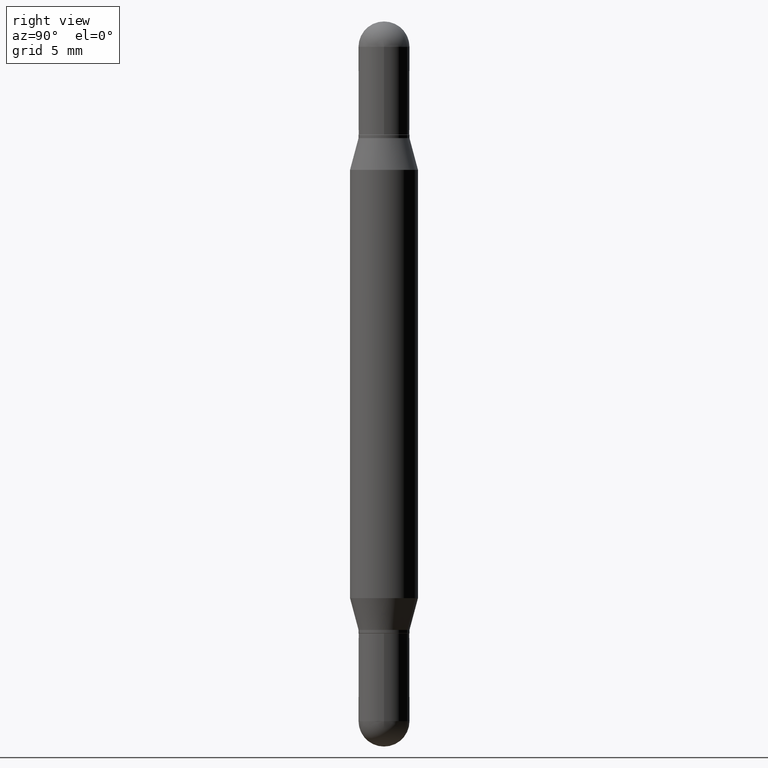
[diagram: clean part render]
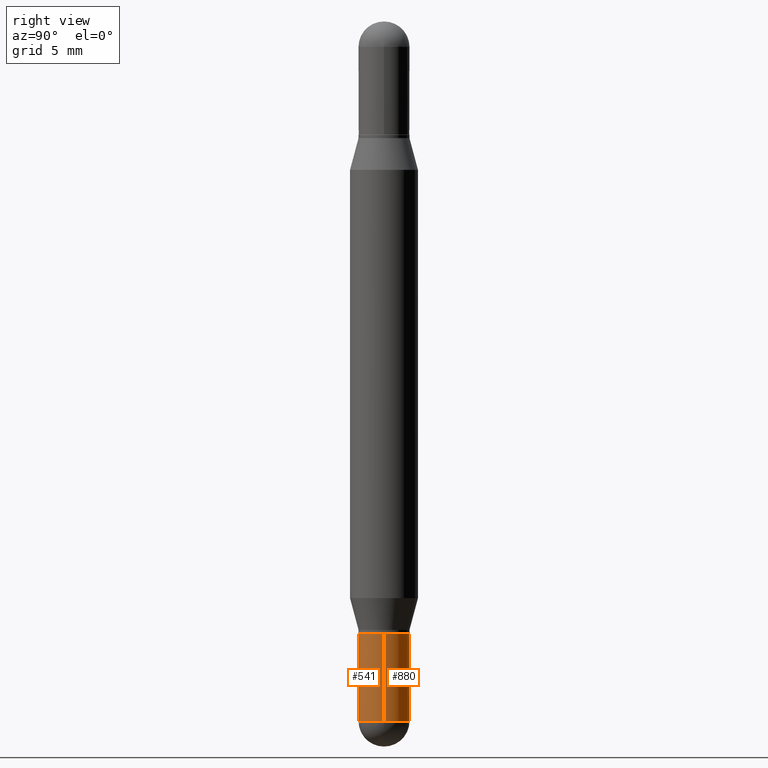
[diagram: same view with one multi-face feature highlighted, each face labeled with its STEP entity id]
A machine part, right view. The highlighted faces form ONE feature: a constant-radius fillet chain: 2 tangent blend faces with common blend radius 1.7856 mm. The faces share edges in the B-rep.
Their STEP definitions:
[1] entity #880 (Cylinder):
#5 = EDGE_CURVE ( 'NONE', #851, #649, #34, .T. ) ;
#18 = CARTESIAN_POINT ( 'NONE',  ( 0.07030000000000004301, -4.909022762413449473E-16, 3.427952273384545239E-30 ) ) ;
#20 = DIRECTION ( 'NONE',  ( 1.000000000000000000, -6.982962677686261189E-15, 0.000000000000000000 ) ) ;
#34 = CIRCLE ( 'NONE', #729, 0.07030000000000004301 ) ;
#44 = DIRECTION ( 'NONE',  ( 1.000000000000000000, -6.982962677686261189E-15, 0.000000000000000000 ) ) ;
#74 = VERTEX_POINT ( 'NONE', #228 ) ;
#87 = ORIENTED_EDGE ( 'NONE', *, *, #470, .F. ) ;
#90 = CARTESIAN_POINT ( 'NONE',  ( 4.719021155295457704E-29, -6.737511539565617508E-15, -1.929699999999999971 ) ) ;
#106 = VERTEX_POINT ( 'NONE', #306 ) ;
#107 = DIRECTION ( 'NONE',  ( -2.445468806185136877E-29, 3.491481338843145188E-15, 1.000000000000000000 ) ) ;
#153 = AXIS2_PLACEMENT_3D ( 'NONE', #829, #197, #907 ) ;
#158 = EDGE_CURVE ( 'NONE', #106, #851, #975, .T. ) ;
#177 = ORIENTED_EDGE ( 'NONE', *, *, #931, .T. ) ;
#197 = DIRECTION ( 'NONE',  ( -2.445468806185136597E-29, 3.491481338843145583E-15, 1.000000000000000000 ) ) ;
#202 = CARTESIAN_POINT ( 'NONE',  ( 4.719021155295457704E-29, -6.737511539565617508E-15, -1.929699999999999971 ) ) ;
#228 = CARTESIAN_POINT ( 'NONE',  ( -0.07030000000000007077, -5.816054476527072498E-15, -1.688000000000000167 ) ) ;
#291 = CARTESIAN_POINT ( 'NONE',  ( -0.07030000000000004301, 4.995115432393507363E-16, -3.458011368449201672E-30 ) ) ;
#293 = LINE ( 'NONE', #18, #1100 ) ;
#306 = CARTESIAN_POINT ( 'NONE',  ( 0.07030000000000004301, -6.806468296007768871E-15, -1.929699999999999971 ) ) ;
#353 = ORIENTED_EDGE ( 'NONE', *, *, #5, .T. ) ;
#366 = CARTESIAN_POINT ( 'NONE',  ( 4.909022762413921804E-16, 0.07029999999999332616, -1.929700000000000193 ) ) ;
#405 = CARTESIAN_POINT ( 'NONE',  ( -0.07030000000000004301, -5.816054476527072498E-15, -1.929699999999999971 ) ) ;
#470 = EDGE_CURVE ( 'NONE', #106, #1009, #293, .T. ) ;
#505 = EDGE_LOOP ( 'NONE', ( #353, #177, #531, #87, #550 ) ) ;
#518 = AXIS2_PLACEMENT_3D ( 'NONE', #90, #783, #20 ) ;
#531 = ORIENTED_EDGE ( 'NONE', *, *, #971, .F. ) ;
#550 = ORIENTED_EDGE ( 'NONE', *, *, #158, .T. ) ;
#556 = DIRECTION ( 'NONE',  ( -2.445468806185136597E-29, 3.491481338843145583E-15, 1.000000000000000000 ) ) ;
#557 = DIRECTION ( 'NONE',  ( -2.445468806185136877E-29, 3.491481338843145188E-15, 1.000000000000000000 ) ) ;
#565 = CYLINDRICAL_SURFACE ( 'NONE', #153, 0.07030000000000004301 ) ;
#643 = DIRECTION ( 'NONE',  ( -2.445468806185136597E-29, 3.491481338843145583E-15, 1.000000000000000000 ) ) ;
#649 = VERTEX_POINT ( 'NONE', #405 ) ;
#652 = CIRCLE ( 'NONE', #1118, 0.07030000000000005689 ) ;
#690 = CARTESIAN_POINT ( 'NONE',  ( 0.07030000000000005689, -6.384522776208575287E-15, -1.688000000000000167 ) ) ;
#729 = AXIS2_PLACEMENT_3D ( 'NONE', #202, #556, #44 ) ;
#783 = DIRECTION ( 'NONE',  ( -2.445468806185136597E-29, 3.491481338843145583E-15, 1.000000000000000000 ) ) ;
#820 = CARTESIAN_POINT ( 'NONE',  ( 4.127951344840510809E-29, -5.893620499967230340E-15, -1.688000000000000167 ) ) ;
#829 = CARTESIAN_POINT ( 'NONE',  ( 0.000000000000000000, 0.000000000000000000, 0.000000000000000000 ) ) ;
#851 = VERTEX_POINT ( 'NONE', #366 ) ;
#880 = ADVANCED_FACE ( 'NONE', ( #1079 ), #565, .T. ) ;
#907 = DIRECTION ( 'NONE',  ( 1.000000000000000000, -6.982962677686268288E-15, 4.876176775795936353E-29 ) ) ;
#931 = EDGE_CURVE ( 'NONE', #649, #74, #1073, .T. ) ;
#971 = EDGE_CURVE ( 'NONE', #1009, #74, #652, .T. ) ;
#975 = CIRCLE ( 'NONE', #518, 0.07030000000000004301 ) ;
#987 = DIRECTION ( 'NONE',  ( 1.000000000000000000, -6.982962677686273810E-15, 0.000000000000000000 ) ) ;
#1009 = VERTEX_POINT ( 'NONE', #690 ) ;
#1043 = VECTOR ( 'NONE', #107, 39.37007874015748143 ) ;
#1073 = LINE ( 'NONE', #291, #1043 ) ;
#1079 = FACE_OUTER_BOUND ( 'NONE', #505, .T. ) ;
#1100 = VECTOR ( 'NONE', #557, 39.37007874015748143 ) ;
#1118 = AXIS2_PLACEMENT_3D ( 'NONE', #820, #643, #987 ) ;
[2] entity #541 (Cylinder):
#18 = CARTESIAN_POINT ( 'NONE',  ( 0.07030000000000004301, -4.909022762413449473E-16, 3.427952273384545239E-30 ) ) ;
#47 = DIRECTION ( 'NONE',  ( -2.445468806185136597E-29, 3.491481338843145583E-15, 1.000000000000000000 ) ) ;
#68 = DIRECTION ( 'NONE',  ( 1.000000000000000000, -6.982962677686273810E-15, 0.000000000000000000 ) ) ;
#70 = CARTESIAN_POINT ( 'NONE',  ( -4.995115432393033060E-16, -0.07030000000000674598, -1.929699999999999527 ) ) ;
#74 = VERTEX_POINT ( 'NONE', #228 ) ;
#106 = VERTEX_POINT ( 'NONE', #306 ) ;
#107 = DIRECTION ( 'NONE',  ( -2.445468806185136877E-29, 3.491481338843145188E-15, 1.000000000000000000 ) ) ;
#115 = CYLINDRICAL_SURFACE ( 'NONE', #399, 0.07030000000000004301 ) ;
#140 = CARTESIAN_POINT ( 'NONE',  ( 4.719021155295457704E-29, -6.737511539565617508E-15, -1.929699999999999971 ) ) ;
#219 = ORIENTED_EDGE ( 'NONE', *, *, #470, .T. ) ;
#228 = CARTESIAN_POINT ( 'NONE',  ( -0.07030000000000007077, -5.816054476527072498E-15, -1.688000000000000167 ) ) ;
#263 = ORIENTED_EDGE ( 'NONE', *, *, #665, .T. ) ;
#269 = ORIENTED_EDGE ( 'NONE', *, *, #931, .F. ) ;
#291 = CARTESIAN_POINT ( 'NONE',  ( -0.07030000000000004301, 4.995115432393507363E-16, -3.458011368449201672E-30 ) ) ;
#293 = LINE ( 'NONE', #18, #1100 ) ;
#306 = CARTESIAN_POINT ( 'NONE',  ( 0.07030000000000004301, -6.806468296007768871E-15, -1.929699999999999971 ) ) ;
#357 = CARTESIAN_POINT ( 'NONE',  ( 0.000000000000000000, 0.000000000000000000, 0.000000000000000000 ) ) ;
#387 = DIRECTION ( 'NONE',  ( -2.445468806185136597E-29, 3.491481338843145583E-15, 1.000000000000000000 ) ) ;
#399 = AXIS2_PLACEMENT_3D ( 'NONE', #357, #47, #460 ) ;
#405 = CARTESIAN_POINT ( 'NONE',  ( -0.07030000000000004301, -5.816054476527072498E-15, -1.929699999999999971 ) ) ;
#460 = DIRECTION ( 'NONE',  ( 1.000000000000000000, -6.982962677686268288E-15, 4.876176775795936353E-29 ) ) ;
#470 = EDGE_CURVE ( 'NONE', #106, #1009, #293, .T. ) ;
#506 = DIRECTION ( 'NONE',  ( -2.445468806185136597E-29, 3.491481338843145583E-15, 1.000000000000000000 ) ) ;
#541 = ADVANCED_FACE ( 'NONE', ( #750 ), #115, .T. ) ;
#557 = DIRECTION ( 'NONE',  ( -2.445468806185136877E-29, 3.491481338843145188E-15, 1.000000000000000000 ) ) ;
#591 = AXIS2_PLACEMENT_3D ( 'NONE', #962, #506, #680 ) ;
#593 = CIRCLE ( 'NONE', #637, 0.07030000000000005689 ) ;
#633 = VERTEX_POINT ( 'NONE', #70 ) ;
#634 = AXIS2_PLACEMENT_3D ( 'NONE', #140, #847, #1088 ) ;
#637 = AXIS2_PLACEMENT_3D ( 'NONE', #767, #387, #68 ) ;
#649 = VERTEX_POINT ( 'NONE', #405 ) ;
#665 = EDGE_CURVE ( 'NONE', #633, #106, #670, .T. ) ;
#670 = CIRCLE ( 'NONE', #591, 0.07030000000000004301 ) ;
#680 = DIRECTION ( 'NONE',  ( 1.000000000000000000, -6.982962677686261189E-15, 0.000000000000000000 ) ) ;
#690 = CARTESIAN_POINT ( 'NONE',  ( 0.07030000000000005689, -6.384522776208575287E-15, -1.688000000000000167 ) ) ;
#725 = EDGE_LOOP ( 'NONE', ( #269, #917, #263, #219, #1096 ) ) ;
#735 = CIRCLE ( 'NONE', #634, 0.07030000000000004301 ) ;
#750 = FACE_OUTER_BOUND ( 'NONE', #725, .T. ) ;
#767 = CARTESIAN_POINT ( 'NONE',  ( 4.127951344840510809E-29, -5.893620499967230340E-15, -1.688000000000000167 ) ) ;
#847 = DIRECTION ( 'NONE',  ( -2.445468806185136597E-29, 3.491481338843145583E-15, 1.000000000000000000 ) ) ;
#917 = ORIENTED_EDGE ( 'NONE', *, *, #994, .T. ) ;
#931 = EDGE_CURVE ( 'NONE', #649, #74, #1073, .T. ) ;
#962 = CARTESIAN_POINT ( 'NONE',  ( 4.719021155295457704E-29, -6.737511539565617508E-15, -1.929699999999999971 ) ) ;
#986 = EDGE_CURVE ( 'NONE', #74, #1009, #593, .T. ) ;
#994 = EDGE_CURVE ( 'NONE', #649, #633, #735, .T. ) ;
#1009 = VERTEX_POINT ( 'NONE', #690 ) ;
#1043 = VECTOR ( 'NONE', #107, 39.37007874015748143 ) ;
#1073 = LINE ( 'NONE', #291, #1043 ) ;
#1088 = DIRECTION ( 'NONE',  ( 1.000000000000000000, -6.982962677686261189E-15, 0.000000000000000000 ) ) ;
#1096 = ORIENTED_EDGE ( 'NONE', *, *, #986, .F. ) ;
#1100 = VECTOR ( 'NONE', #557, 39.37007874015748143 ) ;